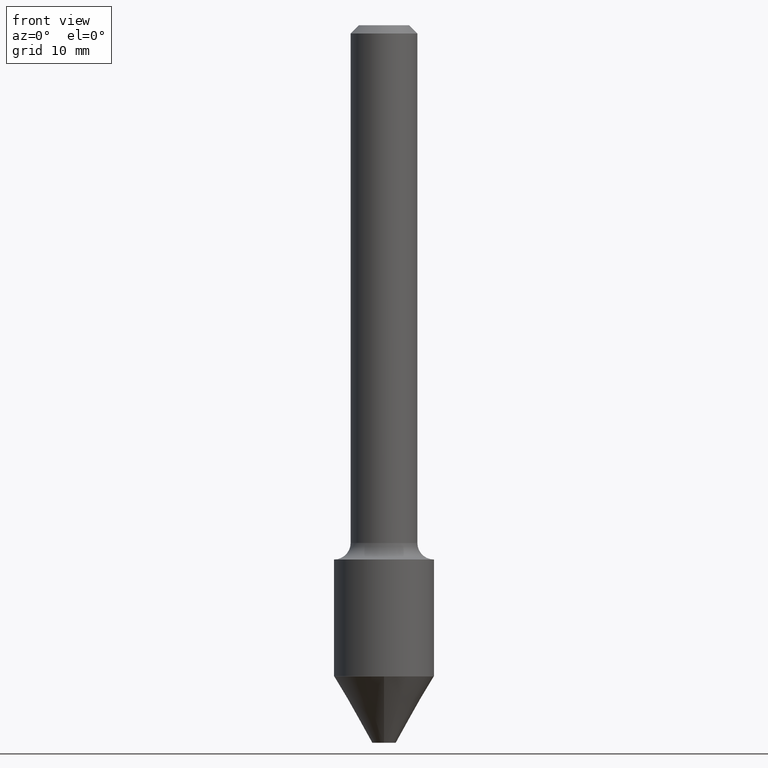
[diagram: clean part render]
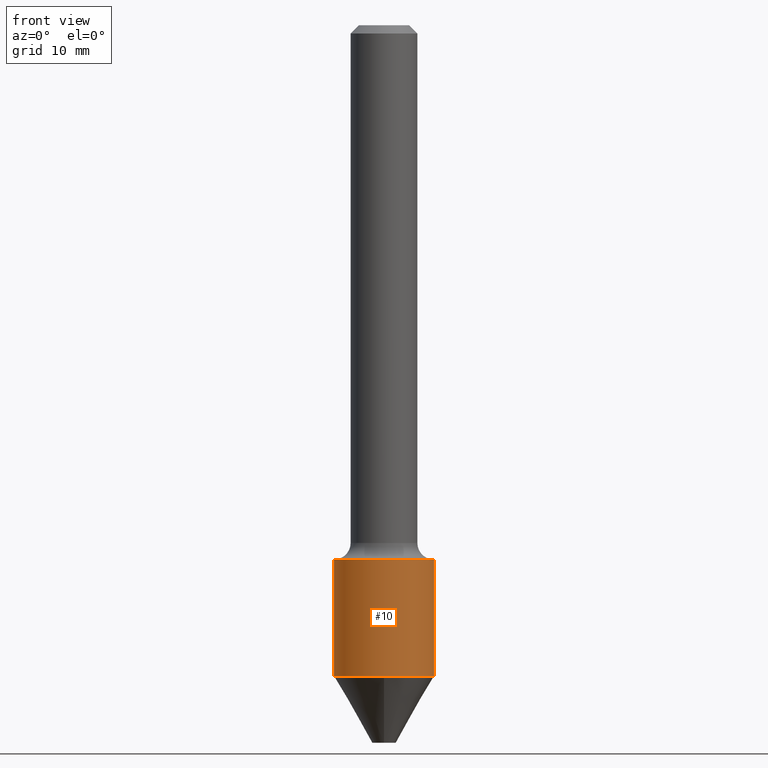
[diagram: same view with one face highlighted and labeled with its STEP entity id]
A machine part, front view. The second image highlights one B-rep face of the part: STEP entity #10.
In plain terms, the highlighted cylindrical surface (partial cylindrical patch) has radius 4.7625 mm, axis along (-0, 0, 1).
Its self-contained STEP definition (entity closure, byte-faithful):
#1 = EDGE_CURVE ( 'NONE', #422, #252, #80, .T. ) ;
#5 = FACE_OUTER_BOUND ( 'NONE', #281, .T. ) ;
#10 = ADVANCED_FACE ( 'NONE', ( #5 ), #241, .T. ) ;
#16 = DIRECTION ( 'NONE',  ( -2.445468806185136877E-29, 3.491481338843145188E-15, 1.000000000000000000 ) ) ;
#51 = CARTESIAN_POINT ( 'NONE',  ( 0.000000000000000000, 0.000000000000000000, 0.000000000000000000 ) ) ;
#68 = EDGE_CURVE ( 'NONE', #422, #395, #414, .T. ) ;
#78 = AXIS2_PLACEMENT_3D ( 'NONE', #464, #188, #110 ) ;
#80 = LINE ( 'NONE', #320, #248 ) ;
#92 = DIRECTION ( 'NONE',  ( 1.000000000000000000, -6.982962677686265922E-15, 4.876176775795935793E-29 ) ) ;
#110 = DIRECTION ( 'NONE',  ( 1.000000000000000000, -6.982962677686265922E-15, 0.000000000000000000 ) ) ;
#114 = ORIENTED_EDGE ( 'NONE', *, *, #203, .T. ) ;
#173 = CIRCLE ( 'NONE', #78, 0.1875000000000000555 ) ;
#180 = LINE ( 'NONE', #369, #261 ) ;
#181 = VERTEX_POINT ( 'NONE', #460 ) ;
#183 = DIRECTION ( 'NONE',  ( -2.445468806185136877E-29, 3.491481338843145188E-15, 1.000000000000000000 ) ) ;
#188 = DIRECTION ( 'NONE',  ( -2.445468806185136597E-29, 3.491481338843145583E-15, 1.000000000000000000 ) ) ;
#199 = CARTESIAN_POINT ( 'NONE',  ( 5.968046082170413696E-29, -8.520788109237668195E-15, -2.440450709113890060 ) ) ;
#203 = EDGE_CURVE ( 'NONE', #395, #181, #180, .T. ) ;
#204 = DIRECTION ( 'NONE',  ( 1.000000000000000000, -6.982962677686270655E-15, 0.000000000000000000 ) ) ;
#228 = ORIENTED_EDGE ( 'NONE', *, *, #334, .F. ) ;
#241 = CYLINDRICAL_SURFACE ( 'NONE', #466, 0.1875000000000000555 ) ;
#248 = VECTOR ( 'NONE', #16, 39.37007874015748143 ) ;
#252 = VERTEX_POINT ( 'NONE', #333 ) ;
#261 = VECTOR ( 'NONE', #183, 39.37007874015748143 ) ;
#275 = ORIENTED_EDGE ( 'NONE', *, *, #68, .T. ) ;
#281 = EDGE_LOOP ( 'NONE', ( #292, #275, #114, #228 ) ) ;
#284 = DIRECTION ( 'NONE',  ( -2.445468806185136597E-29, 3.491481338843145583E-15, 1.000000000000000000 ) ) ;
#292 = ORIENTED_EDGE ( 'NONE', *, *, #1, .F. ) ;
#320 = CARTESIAN_POINT ( 'NONE',  ( -0.1875000000000000555, 1.332267629550188243E-15, -9.223003294227950793E-30 ) ) ;
#333 = CARTESIAN_POINT ( 'NONE',  ( -0.1875000000000000555, -5.661169492152631549E-15, -2.003000000000000114 ) ) ;
#334 = EDGE_CURVE ( 'NONE', #252, #181, #173, .T. ) ;
#369 = CARTESIAN_POINT ( 'NONE',  ( 0.1875000000000000555, -1.309305502066175205E-15, 9.142831454617382414E-30 ) ) ;
#395 = VERTEX_POINT ( 'NONE', #488 ) ;
#414 = CIRCLE ( 'NONE', #515, 0.1875000000000000555 ) ;
#422 = VERTEX_POINT ( 'NONE', #485 ) ;
#460 = CARTESIAN_POINT ( 'NONE',  ( 0.1875000000000000555, -8.302742623768995984E-15, -2.003000000000000114 ) ) ;
#464 = CARTESIAN_POINT ( 'NONE',  ( 4.898274018788828321E-29, -6.993437121702820187E-15, -2.003000000000000114 ) ) ;
#466 = AXIS2_PLACEMENT_3D ( 'NONE', #51, #476, #92 ) ;
#476 = DIRECTION ( 'NONE',  ( -2.445468806185136597E-29, 3.491481338843145583E-15, 1.000000000000000000 ) ) ;
#485 = CARTESIAN_POINT ( 'NONE',  ( -0.1875000000000000555, -6.424844985920055159E-15, -2.440450709113890060 ) ) ;
#488 = CARTESIAN_POINT ( 'NONE',  ( 0.1875000000000000555, -9.830093611303844781E-15, -2.440450709113890060 ) ) ;
#515 = AXIS2_PLACEMENT_3D ( 'NONE', #199, #284, #204 ) ;